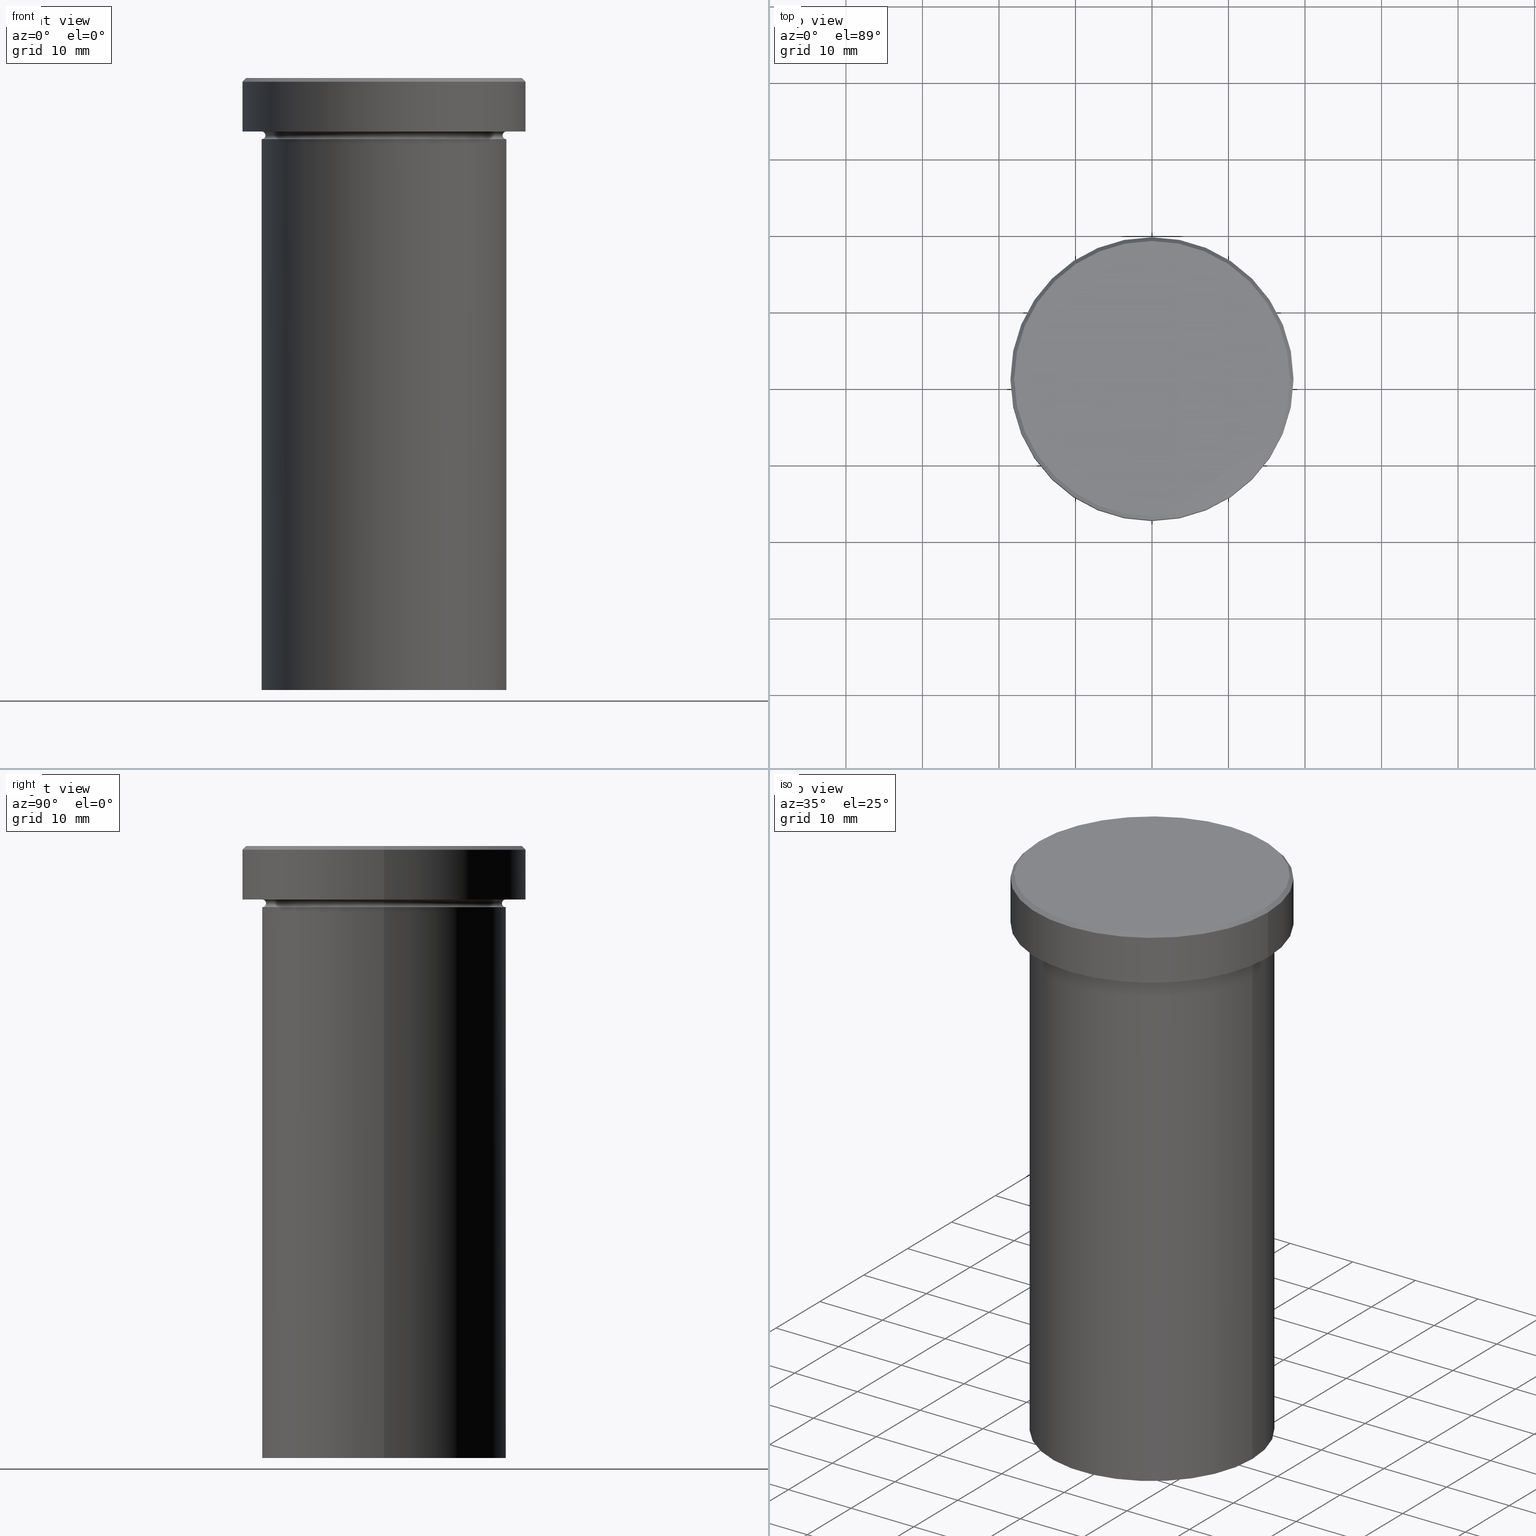
[diagram: canonical four-view strip — front | top / right | iso, engineering-drawing reading convention]
A machine part, canonical four-view strip (front | top / right | iso — engineering-drawing reading convention). The complete STEP part file that produces these views, byte-faithful:
ISO-10303-21;
HEADER;
FILE_DESCRIPTION (( 'STEP AP203' ),
    '1' );
FILE_NAME ('068a.STEP',
    '2024-01-02T18:52:44',
    ( '' ),
    ( '' ),
    'SwSTEP 2.0',
    'SolidWorks 2019',
    '' );
FILE_SCHEMA (( 'CONFIG_CONTROL_DESIGN' ));
ENDSEC;

DATA;
#1 = CARTESIAN_POINT ( 'NONE',  ( 18.50000000000000000, 0.000000000000000000, -6.999999999999998224 ) ) ;
#2 = EDGE_CURVE ( 'NONE', #43, #400, #278, .T. ) ;
#3 = CC_DESIGN_APPROVAL ( #367, ( #87 ) ) ;
#4 = DIRECTION ( 'NONE',  ( 1.000000000000000000, 0.000000000000000000, 0.000000000000000000 ) ) ;
#5 = CALENDAR_DATE ( 2024, 2, 1 ) ;
#6 = DIRECTION ( 'NONE',  ( 0.000000000000000000, -1.000000000000000000, 0.000000000000000000 ) ) ;
#7 = CC_DESIGN_PERSON_AND_ORGANIZATION_ASSIGNMENT ( #389, #355, ( #258 ) ) ;
#8 = CARTESIAN_POINT ( 'NONE',  ( 0.000000000000000000, 0.000000000000000000, -7.500000000000000000 ) ) ;
#9 = CONICAL_SURFACE ( 'NONE', #170, 17.99999999999998934, 0.7853981633974380649 ) ;
#10 = CARTESIAN_POINT ( 'NONE',  ( -16.00000000000000000, 1.959434878635765131E-15, -7.500000000000000000 ) ) ;
#11 = DIRECTION ( 'NONE',  ( -1.000000000000000000, 0.000000000000000000, -0.000000000000000000 ) ) ;
#12 = CC_DESIGN_PERSON_AND_ORGANIZATION_ASSIGNMENT ( #378, #344, ( #82 ) ) ;
#13 = DIRECTION ( 'NONE',  ( -1.000000000000000000, -1.224646799147349509E-16, 0.000000000000000000 ) ) ;
#14 = CIRCLE ( 'NONE', #279, 18.50000000000000000 ) ;
#15 = ORIENTED_EDGE ( 'NONE', *, *, #50, .F. ) ;
#16 = ORIENTED_EDGE ( 'NONE', *, *, #288, .T. ) ;
#17 = ORIENTED_EDGE ( 'NONE', *, *, #282, .F. ) ;
#18 =( NAMED_UNIT ( * ) PLANE_ANGLE_UNIT ( ) SI_UNIT ( $, .RADIAN. ) );
#19 =( GEOMETRIC_REPRESENTATION_CONTEXT ( 3 ) GLOBAL_UNCERTAINTY_ASSIGNED_CONTEXT ( ( #184 ) ) GLOBAL_UNIT_ASSIGNED_CONTEXT ( ( #337, #18, #319 ) ) REPRESENTATION_CONTEXT ( 'NONE', 'WORKASPACE' ) );
#20 = ORIENTED_EDGE ( 'NONE', *, *, #386, .F. ) ;
#21 = ORIENTED_EDGE ( 'NONE', *, *, #116, .T. ) ;
#22 = DIRECTION ( 'NONE',  ( 1.000000000000000000, 0.000000000000000000, 0.000000000000000000 ) ) ;
#23 = EDGE_CURVE ( 'NONE', #306, #373, #118, .T. ) ;
#24 = DIRECTION ( 'NONE',  ( -0.000000000000000000, -0.000000000000000000, 1.000000000000000000 ) ) ;
#25 = AXIS2_PLACEMENT_3D ( 'NONE', #96, #232, #62 ) ;
#26 = CALENDAR_DATE ( 2024, 2, 1 ) ;
#27 = APPROVAL_DATE_TIME ( #33, #295 ) ;
#28 = ADVANCED_FACE ( 'NONE', ( #78 ), #405, .T. ) ;
#29 = CYLINDRICAL_SURFACE ( 'NONE', #234, 18.50000000000000000 ) ;
#30 = APPROVAL_DATE_TIME ( #322, #143 ) ;
#31 = CARTESIAN_POINT ( 'NONE',  ( 0.000000000000000000, 0.000000000000000000, 0.000000000000000000 ) ) ;
#32 = APPROVAL_PERSON_ORGANIZATION ( #92, #367, #35 ) ;
#33 = DATE_AND_TIME ( #5, #74 ) ;
#34 = DIRECTION ( 'NONE',  ( 0.000000000000000000, 0.000000000000000000, -1.000000000000000000 ) ) ;
#35 = APPROVAL_ROLE ( '' ) ;
#36 = DIRECTION ( 'NONE',  ( -1.000000000000000000, 0.000000000000000000, 0.000000000000000000 ) ) ;
#37 = EDGE_CURVE ( 'NONE', #379, #302, #185, .T. ) ;
#38 = DIRECTION ( 'NONE',  ( -0.000000000000000000, -0.000000000000000000, 1.000000000000000000 ) ) ;
#39 = AXIS2_PLACEMENT_3D ( 'NONE', #229, #231, #358 ) ;
#40 = EDGE_LOOP ( 'NONE', ( #174, #214, #112, #134 ) ) ;
#41 = CARTESIAN_POINT ( 'NONE',  ( 0.000000000000000000, 18.50000000000000000, -6.999999999999999112 ) ) ;
#42 = ADVANCED_FACE ( 'NONE', ( #342 ), #246, .T. ) ;
#43 = VERTEX_POINT ( 'NONE', #149 ) ;
#44 = DIRECTION ( 'NONE',  ( -0.000000000000000000, -0.000000000000000000, 1.000000000000000000 ) ) ;
#45 = AXIS2_PLACEMENT_3D ( 'NONE', #151, #286, #253 ) ;
#46 = LINE ( 'NONE', #77, #128 ) ;
#47 = CIRCLE ( 'NONE', #39, 17.99999999999998934 ) ;
#48 = ORIENTED_EDGE ( 'NONE', *, *, #168, .F. ) ;
#49 = ORIENTED_EDGE ( 'NONE', *, *, #122, .F. ) ;
#50 = EDGE_CURVE ( 'NONE', #302, #307, #375, .T. ) ;
#51 = DIRECTION ( 'NONE',  ( -0.000000000000000000, -0.000000000000000000, 1.000000000000000000 ) ) ;
#52 = EDGE_LOOP ( 'NONE', ( #343, #106 ) ) ;
#53 = ORIENTED_EDGE ( 'NONE', *, *, #338, .F. ) ;
#54 = APPROVAL_PERSON_ORGANIZATION ( #65, #295, #320 ) ;
#55 = FACE_OUTER_BOUND ( 'NONE', #124, .T. ) ;
#56 = DIRECTION ( 'NONE',  ( -0.000000000000000000, -0.000000000000000000, 1.000000000000000000 ) ) ;
#57 = EDGE_CURVE ( 'NONE', #373, #306, #103, .T. ) ;
#58 = APPLICATION_PROTOCOL_DEFINITION ( 'international standard', 'config_control_design', 1994, #208 ) ;
#59 = DIRECTION ( 'NONE',  ( -0.000000000000000000, -0.000000000000000000, 1.000000000000000000 ) ) ;
#60 = AXIS2_PLACEMENT_3D ( 'NONE', #71, #132, #227 ) ;
#61 = CC_DESIGN_PERSON_AND_ORGANIZATION_ASSIGNMENT ( #352, #226, ( #362 ) ) ;
#62 = DIRECTION ( 'NONE',  ( 1.000000000000000000, 0.000000000000000000, 0.000000000000000000 ) ) ;
#63 = CALENDAR_DATE ( 2024, 2, 1 ) ;
#64 = CARTESIAN_POINT ( 'NONE',  ( -17.99999999999998934, 0.000000000000000000, 0.000000000000000000 ) ) ;
#65 = PERSON_AND_ORGANIZATION ( #290, #223 ) ;
#66 = DIRECTION ( 'NONE',  ( -0.000000000000000000, -0.000000000000000000, 1.000000000000000000 ) ) ;
#67 = AXIS2_PLACEMENT_3D ( 'NONE', #276, #215, #220 ) ;
#68 = COORDINATED_UNIVERSAL_TIME_OFFSET ( 1, 0, .AHEAD. ) ;
#69 = DIRECTION ( 'NONE',  ( 1.000000000000000000, 0.000000000000000000, 0.000000000000000000 ) ) ;
#70 = ADVANCED_FACE ( 'NONE', ( #153 ), #297, .F. ) ;
#71 = CARTESIAN_POINT ( 'NONE',  ( 0.000000000000000000, 0.000000000000000000, -7.500000000000000000 ) ) ;
#72 = FACE_BOUND ( 'NONE', #395, .T. ) ;
#73 = ADVANCED_FACE ( 'NONE', ( #255 ), #157, .F. ) ;
#74 = LOCAL_TIME ( 19, 52, 44.00000000000000000, #152 ) ;
#75 = PLANE ( 'NONE',  #298 ) ;
#76 = ORIENTED_EDGE ( 'NONE', *, *, #327, .T. ) ;
#77 = CARTESIAN_POINT ( 'NONE',  ( 17.99999999999998934, 2.204364238465234244E-15, 0.000000000000000000 ) ) ;
#78 = FACE_OUTER_BOUND ( 'NONE', #140, .T. ) ;
#79 = VERTEX_POINT ( 'NONE', #1 ) ;
#80 = ORIENTED_EDGE ( 'NONE', *, *, #316, .F. ) ;
#81 = ORIENTED_EDGE ( 'NONE', *, *, #97, .T. ) ;
#82 = PRODUCT ( '068a', '068a', '', ( #315 ) ) ;
#83 = CARTESIAN_POINT ( 'NONE',  ( 0.000000000000000000, 0.000000000000000000, 0.000000000000000000 ) ) ;
#84 = DIRECTION ( 'NONE',  ( 1.000000000000000000, 0.000000000000000000, 0.000000000000000000 ) ) ;
#85 = CARTESIAN_POINT ( 'NONE',  ( 0.000000000000000000, 0.000000000000000000, 0.000000000000000000 ) ) ;
#86 = ORIENTED_EDGE ( 'NONE', *, *, #407, .T. ) ;
#87 = PRODUCT_DEFINITION ( 'NEZN�M�', '', #258, #117 ) ;
#88 = DIRECTION ( 'NONE',  ( 1.000000000000000000, 0.000000000000000000, 0.000000000000000000 ) ) ;
#89 = VECTOR ( 'NONE', #393, 1000.000000000000000 ) ;
#90 = CARTESIAN_POINT ( 'NONE',  ( -15.50000000000000000, 1.928818708657081344E-15, -7.500000000000000000 ) ) ;
#91 = APPLICATION_CONTEXT ( 'configuration controlled 3d designs of mechanical parts and assemblies' ) ;
#92 = PERSON_AND_ORGANIZATION ( #290, #223 ) ;
#93 = FACE_OUTER_BOUND ( 'NONE', #145, .T. ) ;
#94 = AXIS2_PLACEMENT_3D ( 'NONE', #180, #318, #88 ) ;
#95 = CIRCLE ( 'NONE', #186, 16.00000000000000000 ) ;
#96 = CARTESIAN_POINT ( 'NONE',  ( 0.000000000000000000, 0.000000000000000000, -7.500000000000000000 ) ) ;
#97 = EDGE_CURVE ( 'NONE', #409, #79, #397, .T. ) ;
#98 = CARTESIAN_POINT ( 'NONE',  ( 16.00000000000000000, 0.000000000000000000, -7.500000000000000000 ) ) ;
#99 = AXIS2_PLACEMENT_3D ( 'NONE', #107, #303, #13 ) ;
#100 = TOROIDAL_SURFACE ( 'NONE', #60, 16.00000000000000000, 0.5000000000000000000 ) ;
#101 = DIRECTION ( 'NONE',  ( -0.000000000000000000, -1.000000000000000000, -0.000000000000000000 ) ) ;
#102 = DIRECTION ( 'NONE',  ( 0.000000000000000000, 0.000000000000000000, -1.000000000000000000 ) ) ;
#103 = CIRCLE ( 'NONE', #45, 15.50000000000000000 ) ;
#104 = APPROVAL_PERSON_ORGANIZATION ( #230, #143, #359 ) ;
#105 = ORIENTED_EDGE ( 'NONE', *, *, #130, .F. ) ;
#106 = ORIENTED_EDGE ( 'NONE', *, *, #212, .T. ) ;
#107 = CARTESIAN_POINT ( 'NONE',  ( 16.00000000000000000, 1.959434878635765131E-15, -7.500000000000000000 ) ) ;
#108 = ORIENTED_EDGE ( 'NONE', *, *, #212, .F. ) ;
#109 = DIRECTION ( 'NONE',  ( 0.7071067811865402453, 8.659560562354844111E-17, -0.7071067811865549002 ) ) ;
#110 = EDGE_CURVE ( 'NONE', #221, #372, #382, .T. ) ;
#111 = DIRECTION ( 'NONE',  ( -0.000000000000000000, -0.000000000000000000, 1.000000000000000000 ) ) ;
#112 = ORIENTED_EDGE ( 'NONE', *, *, #168, .T. ) ;
#113 = ORIENTED_EDGE ( 'NONE', *, *, #37, .T. ) ;
#114 = DIRECTION ( 'NONE',  ( 0.000000000000000000, 0.000000000000000000, 1.000000000000000000 ) ) ;
#115 = DIRECTION ( 'NONE',  ( 1.000000000000000000, 0.000000000000000000, 0.000000000000000000 ) ) ;
#116 = EDGE_CURVE ( 'NONE', #306, #399, #209, .T. ) ;
#117 = DESIGN_CONTEXT ( 'detailed design', #208, 'design' ) ;
#118 = CIRCLE ( 'NONE', #233, 15.50000000000000000 ) ;
#119 = AXIS2_PLACEMENT_3D ( 'NONE', #177, #59, #245 ) ;
#120 = ORIENTED_EDGE ( 'NONE', *, *, #158, .T. ) ;
#121 = CYLINDRICAL_SURFACE ( 'NONE', #67, 18.50000000000000000 ) ;
#122 = EDGE_CURVE ( 'NONE', #373, #307, #390, .T. ) ;
#123 = DIRECTION ( 'NONE',  ( -0.000000000000000000, -0.000000000000000000, 1.000000000000000000 ) ) ;
#124 = EDGE_LOOP ( 'NONE', ( #148, #81, #349, #205 ) ) ;
#125 = APPROVAL_STATUS ( 'not_yet_approved' ) ;
#126 = ORIENTED_EDGE ( 'NONE', *, *, #407, .F. ) ;
#127 = DIRECTION ( 'NONE',  ( -0.7071067811865402453, 0.000000000000000000, -0.7071067811865549002 ) ) ;
#128 = VECTOR ( 'NONE', #109, 1000.000000000000114 ) ;
#129 = DIRECTION ( 'NONE',  ( 0.000000000000000000, 0.000000000000000000, -1.000000000000000000 ) ) ;
#130 = EDGE_CURVE ( 'NONE', #311, #372, #351, .T. ) ;
#131 = DATE_AND_TIME ( #194, #292 ) ;
#132 = DIRECTION ( 'NONE',  ( 0.000000000000000000, 0.000000000000000000, -1.000000000000000000 ) ) ;
#133 = CARTESIAN_POINT ( 'NONE',  ( -16.00000000000000000, 0.000000000000000000, -7.500000000000000000 ) ) ;
#134 = ORIENTED_EDGE ( 'NONE', *, *, #2, .F. ) ;
#135 = CONICAL_SURFACE ( 'NONE', #357, 17.99999999999998934, 0.7853981633974380649 ) ;
#136 = CARTESIAN_POINT ( 'NONE',  ( 0.000000000000000000, 0.000000000000000000, -6.999999999999998224 ) ) ;
#137 = CC_DESIGN_PERSON_AND_ORGANIZATION_ASSIGNMENT ( #260, #160, ( #258 ) ) ;
#138 = ORIENTED_EDGE ( 'NONE', *, *, #2, .T. ) ;
#139 = FACE_OUTER_BOUND ( 'NONE', #52, .T. ) ;
#140 = EDGE_LOOP ( 'NONE', ( #15, #202, #301, #20 ) ) ;
#141 = CIRCLE ( 'NONE', #325, 17.99999999999998934 ) ;
#142 = CARTESIAN_POINT ( 'NONE',  ( -16.00000000000000000, 1.959434878635765131E-15, -80.00000000000000000 ) ) ;
#143 = APPROVAL ( #125, 'NEUR�EN�' ) ;
#144 = DIRECTION ( 'NONE',  ( 1.000000000000000000, 0.000000000000000000, 0.000000000000000000 ) ) ;
#145 = EDGE_LOOP ( 'NONE', ( #108, #266, #80, #105 ) ) ;
#146 = AXIS2_PLACEMENT_3D ( 'NONE', #163, #66, #387 ) ;
#147 = CARTESIAN_POINT ( 'NONE',  ( 0.000000000000000000, 0.000000000000000000, -8.000000000000000000 ) ) ;
#148 = ORIENTED_EDGE ( 'NONE', *, *, #327, .F. ) ;
#149 = CARTESIAN_POINT ( 'NONE',  ( 16.00000000000000000, 1.959434878635765131E-15, -6.999999999999999112 ) ) ;
#150 = AXIS2_PLACEMENT_3D ( 'NONE', #207, #332, #240 ) ;
#151 = CARTESIAN_POINT ( 'NONE',  ( 0.000000000000000000, 0.000000000000000000, -7.500000000000000000 ) ) ;
#152 = COORDINATED_UNIVERSAL_TIME_OFFSET ( 1, 0, .AHEAD. ) ;
#153 = FACE_OUTER_BOUND ( 'NONE', #217, .T. ) ;
#154 = SECURITY_CLASSIFICATION_LEVEL ( 'unclassified' ) ;
#155 = DIRECTION ( 'NONE',  ( -0.000000000000000000, -0.000000000000000000, 1.000000000000000000 ) ) ;
#156 = CARTESIAN_POINT ( 'NONE',  ( 0.000000000000000000, 0.000000000000000000, 0.000000000000000000 ) ) ;
#157 = TOROIDAL_SURFACE ( 'NONE', #356, 16.00000000000000000, 0.5000000000000000000 ) ;
#158 = EDGE_CURVE ( 'NONE', #79, #409, #14, .T. ) ;
#159 = AXIS2_PLACEMENT_3D ( 'NONE', #10, #293, #195 ) ;
#160 = PERSON_AND_ORGANIZATION_ROLE ( 'design_supplier' ) ;
#161 = ADVANCED_BREP_SHAPE_REPRESENTATION ( '068a', ( #190, #244 ), #19 ) ;
#162 = APPROVAL_DATE_TIME ( #197, #367 ) ;
#163 = CARTESIAN_POINT ( 'NONE',  ( 0.000000000000000000, 0.000000000000000000, -6.999999999999998224 ) ) ;
#164 = VECTOR ( 'NONE', #51, 1000.000000000000000 ) ;
#165 = ORIENTED_EDGE ( 'NONE', *, *, #37, .F. ) ;
#166 = DIRECTION ( 'NONE',  ( -0.000000000000000000, -0.000000000000000000, 1.000000000000000000 ) ) ;
#167 = EDGE_LOOP ( 'NONE', ( #113, #363, #271, #53 ) ) ;
#168 = EDGE_CURVE ( 'NONE', #373, #400, #265, .T. ) ;
#169 = AXIS2_PLACEMENT_3D ( 'NONE', #199, #237, #365 ) ;
#170 = AXIS2_PLACEMENT_3D ( 'NONE', #31, #198, #381 ) ;
#171 = CARTESIAN_POINT ( 'NONE',  ( -17.99999999999998934, 0.000000000000000000, 0.000000000000000000 ) ) ;
#172 = EDGE_LOOP ( 'NONE', ( #165, #273 ) ) ;
#173 = DIRECTION ( 'NONE',  ( -1.000000000000000000, 0.000000000000000000, -0.000000000000000000 ) ) ;
#174 = ORIENTED_EDGE ( 'NONE', *, *, #288, .F. ) ;
#175 = ADVANCED_FACE ( 'NONE', ( #385 ), #100, .F. ) ;
#176 = LINE ( 'NONE', #249, #178 ) ;
#177 = CARTESIAN_POINT ( 'NONE',  ( 0.000000000000000000, 0.000000000000000000, -6.999999999999999112 ) ) ;
#178 = VECTOR ( 'NONE', #374, 1000.000000000000000 ) ;
#179 = DIRECTION ( 'NONE',  ( 1.000000000000000000, 0.000000000000000000, 0.000000000000000000 ) ) ;
#180 = CARTESIAN_POINT ( 'NONE',  ( 0.000000000000000000, 0.000000000000000000, -80.00000000000000000 ) ) ;
#181 = DIRECTION ( 'NONE',  ( -0.000000000000000000, -0.000000000000000000, 1.000000000000000000 ) ) ;
#182 = CARTESIAN_POINT ( 'NONE',  ( 0.000000000000000000, 0.000000000000000000, 0.000000000000000000 ) ) ;
#183 = ORIENTED_EDGE ( 'NONE', *, *, #386, .T. ) ;
#184 = UNCERTAINTY_MEASURE_WITH_UNIT (LENGTH_MEASURE( 1.000000000000000082E-05 ), #337, 'distance_accuracy_value', 'NONE');
#185 = CIRCLE ( 'NONE', #94, 16.00000000000000000 ) ;
#186 = AXIS2_PLACEMENT_3D ( 'NONE', #147, #312, #339 ) ;
#187 = PERSON_AND_ORGANIZATION_ROLE ( 'creator' ) ;
#188 = DIRECTION ( 'NONE',  ( -1.000000000000000000, 0.000000000000000000, 0.000000000000000000 ) ) ;
#189 = APPROVAL_STATUS ( 'not_yet_approved' ) ;
#190 = MANIFOLD_SOLID_BREP ( 'Zkosen�1', #243 ) ;
#191 = ADVANCED_FACE ( 'NONE', ( #192 ), #193, .F. ) ;
#192 = FACE_OUTER_BOUND ( 'NONE', #310, .T. ) ;
#193 = TOROIDAL_SURFACE ( 'NONE', #25, 16.00000000000000000, 0.5000000000000000000 ) ;
#194 = CALENDAR_DATE ( 2024, 2, 1 ) ;
#195 = DIRECTION ( 'NONE',  ( -1.000000000000000000, 1.224646799147349509E-16, 0.000000000000000000 ) ) ;
#196 = ADVANCED_FACE ( 'NONE', ( #93 ), #9, .T. ) ;
#197 = DATE_AND_TIME ( #222, #328 ) ;
#198 = DIRECTION ( 'NONE',  ( 0.000000000000000000, 0.000000000000000000, -1.000000000000000000 ) ) ;
#199 = CARTESIAN_POINT ( 'NONE',  ( 0.000000000000000000, 0.000000000000000000, -6.999999999999999112 ) ) ;
#200 = LOCAL_TIME ( 19, 52, 44.00000000000000000, #408 ) ;
#201 = DIRECTION ( 'NONE',  ( 0.000000000000000000, 0.000000000000000000, -1.000000000000000000 ) ) ;
#202 = ORIENTED_EDGE ( 'NONE', *, *, #401, .T. ) ;
#203 = CARTESIAN_POINT ( 'NONE',  ( 0.000000000000000000, 0.000000000000000000, 0.000000000000000000 ) ) ;
#204 = ADVANCED_FACE ( 'NONE', ( #259 ), #135, .T. ) ;
#205 = ORIENTED_EDGE ( 'NONE', *, *, #110, .T. ) ;
#206 = ORIENTED_EDGE ( 'NONE', *, *, #391, .T. ) ;
#207 = CARTESIAN_POINT ( 'NONE',  ( 0.000000000000000000, 0.000000000000000000, -0.5000000000000213163 ) ) ;
#208 = APPLICATION_CONTEXT ( 'configuration controlled 3d designs of mechanical parts and assemblies' ) ;
#209 = CIRCLE ( 'NONE', #264, 0.5000000000000004441 ) ;
#210 = VECTOR ( 'NONE', #127, 1000.000000000000114 ) ;
#211 = CARTESIAN_POINT ( 'NONE',  ( -18.50000000000000000, 2.265596578422603396E-15, 0.000000000000000000 ) ) ;
#212 = EDGE_CURVE ( 'NONE', #370, #311, #47, .T. ) ;
#213 = CARTESIAN_POINT ( 'NONE',  ( 0.000000000000000000, 0.000000000000000000, -8.000000000000000000 ) ) ;
#214 = ORIENTED_EDGE ( 'NONE', *, *, #23, .T. ) ;
#215 = DIRECTION ( 'NONE',  ( -0.000000000000000000, -0.000000000000000000, 1.000000000000000000 ) ) ;
#216 = CIRCLE ( 'NONE', #403, 16.00000000000000000 ) ;
#217 = EDGE_LOOP ( 'NONE', ( #49, #274, #21, #206 ) ) ;
#218 = CC_DESIGN_DATE_AND_TIME_ASSIGNMENT ( #131, #228, ( #362 ) ) ;
#219 = ORIENTED_EDGE ( 'NONE', *, *, #158, .F. ) ;
#220 = DIRECTION ( 'NONE',  ( 1.000000000000000000, 0.000000000000000000, 0.000000000000000000 ) ) ;
#221 = VERTEX_POINT ( 'NONE', #321 ) ;
#222 = CALENDAR_DATE ( 2024, 2, 1 ) ;
#223 = ORGANIZATION ( 'NEUR�EN�', 'NEUR�EN�', '' ) ;
#224 = CARTESIAN_POINT ( 'NONE',  ( 0.000000000000000000, 0.000000000000000000, 0.000000000000000000 ) ) ;
#225 = ORIENTED_EDGE ( 'NONE', *, *, #116, .F. ) ;
#226 = PERSON_AND_ORGANIZATION_ROLE ( 'classification_officer' ) ;
#227 = DIRECTION ( 'NONE',  ( -1.000000000000000000, 0.000000000000000000, 0.000000000000000000 ) ) ;
#228 = DATE_TIME_ROLE ( 'classification_date' ) ;
#229 = CARTESIAN_POINT ( 'NONE',  ( 0.000000000000000000, 0.000000000000000000, 0.000000000000000000 ) ) ;
#230 = PERSON_AND_ORGANIZATION ( #290, #223 ) ;
#231 = DIRECTION ( 'NONE',  ( -0.000000000000000000, -0.000000000000000000, 1.000000000000000000 ) ) ;
#232 = DIRECTION ( 'NONE',  ( -0.000000000000000000, -0.000000000000000000, 1.000000000000000000 ) ) ;
#233 = AXIS2_PLACEMENT_3D ( 'NONE', #331, #44, #368 ) ;
#234 = AXIS2_PLACEMENT_3D ( 'NONE', #156, #155, #4 ) ;
#235 = ADVANCED_FACE ( 'NONE', ( #323 ), #29, .T. ) ;
#236 = CARTESIAN_POINT ( 'NONE',  ( 18.50000000000000000, 0.000000000000000000, 0.000000000000000000 ) ) ;
#237 = DIRECTION ( 'NONE',  ( -0.000000000000000000, -0.000000000000000000, 1.000000000000000000 ) ) ;
#238 = ORIENTED_EDGE ( 'NONE', *, *, #110, .F. ) ;
#239 = CARTESIAN_POINT ( 'NONE',  ( 15.50000000000000000, 0.000000000000000000, -7.500000000000000000 ) ) ;
#240 = DIRECTION ( 'NONE',  ( 1.000000000000000000, 0.000000000000000000, 0.000000000000000000 ) ) ;
#241 = PRODUCT_RELATED_PRODUCT_CATEGORY ( 'detail', '', ( #82 ) ) ;
#242 = ORIENTED_EDGE ( 'NONE', *, *, #316, .T. ) ;
#243 = CLOSED_SHELL ( 'NONE', ( #196, #73, #191, #42, #235, #268, #248, #361, #275, #28, #70, #175, #204 ) ) ;
#244 = AXIS2_PLACEMENT_3D ( 'NONE', #83, #114, #84 ) ;
#245 = DIRECTION ( 'NONE',  ( -1.000000000000000000, 0.000000000000000000, 0.000000000000000000 ) ) ;
#246 = CYLINDRICAL_SURFACE ( 'NONE', #324, 16.00000000000000000 ) ;
#247 = CARTESIAN_POINT ( 'NONE',  ( -18.50000000000000000, 2.265596578422603396E-15, -0.5000000000000213163 ) ) ;
#248 = ADVANCED_FACE ( 'NONE', ( #139 ), #75, .T. ) ;
#249 = CARTESIAN_POINT ( 'NONE',  ( 16.00000000000000000, 0.000000000000000000, 0.000000000000000000 ) ) ;
#250 = AXIS2_PLACEMENT_3D ( 'NONE', #41, #102, #11 ) ;
#251 = ORIENTED_EDGE ( 'NONE', *, *, #308, .F. ) ;
#252 = CARTESIAN_POINT ( 'NONE',  ( 16.00000000000000000, 0.000000000000000000, -80.00000000000000000 ) ) ;
#253 = DIRECTION ( 'NONE',  ( 1.000000000000000000, 0.000000000000000000, 0.000000000000000000 ) ) ;
#254 = DATE_AND_TIME ( #26, #200 ) ;
#255 = FACE_OUTER_BOUND ( 'NONE', #371, .T. ) ;
#256 = EDGE_LOOP ( 'NONE', ( #219, #313 ) ) ;
#257 = COORDINATED_UNIVERSAL_TIME_OFFSET ( 1, 0, .AHEAD. ) ;
#258 = PRODUCT_DEFINITION_FORMATION_WITH_SPECIFIED_SOURCE ( 'LIBOVOLN�', '', #82, .NOT_KNOWN. ) ;
#259 = FACE_OUTER_BOUND ( 'NONE', #392, .T. ) ;
#260 = PERSON_AND_ORGANIZATION ( #290, #223 ) ;
#261 = DIRECTION ( 'NONE',  ( 1.000000000000000000, 0.000000000000000000, 0.000000000000000000 ) ) ;
#262 = SHAPE_DEFINITION_REPRESENTATION ( #404, #161 ) ;
#263 = EDGE_CURVE ( 'NONE', #79, #221, #267, .T. ) ;
#264 = AXIS2_PLACEMENT_3D ( 'NONE', #98, #6, #294 ) ;
#265 = CIRCLE ( 'NONE', #334, 0.5000000000000004441 ) ;
#266 = ORIENTED_EDGE ( 'NONE', *, *, #308, .T. ) ;
#267 = LINE ( 'NONE', #236, #89 ) ;
#268 = ADVANCED_FACE ( 'NONE', ( #364 ), #299, .T. ) ;
#269 = ORIENTED_EDGE ( 'NONE', *, *, #122, .T. ) ;
#270 = CARTESIAN_POINT ( 'NONE',  ( 0.000000000000000000, 0.000000000000000000, 0.000000000000000000 ) ) ;
#271 = ORIENTED_EDGE ( 'NONE', *, *, #391, .F. ) ;
#272 = CC_DESIGN_APPROVAL ( #143, ( #362 ) ) ;
#273 = ORIENTED_EDGE ( 'NONE', *, *, #401, .F. ) ;
#274 = ORIENTED_EDGE ( 'NONE', *, *, #23, .F. ) ;
#275 = ADVANCED_FACE ( 'NONE', ( #72, #330 ), #394, .T. ) ;
#276 = CARTESIAN_POINT ( 'NONE',  ( 0.000000000000000000, 0.000000000000000000, 0.000000000000000000 ) ) ;
#277 = ORIENTED_EDGE ( 'NONE', *, *, #57, .T. ) ;
#278 = CIRCLE ( 'NONE', #169, 16.00000000000000000 ) ;
#279 = AXIS2_PLACEMENT_3D ( 'NONE', #136, #38, #289 ) ;
#280 = APPLICATION_PROTOCOL_DEFINITION ( 'international standard', 'config_control_design', 1994, #91 ) ;
#281 = CARTESIAN_POINT ( 'NONE',  ( -16.00000000000000000, 0.000000000000000000, -6.999999999999999112 ) ) ;
#282 = EDGE_CURVE ( 'NONE', #311, #370, #141, .T. ) ;
#283 = DIRECTION ( 'NONE',  ( 1.000000000000000000, 0.000000000000000000, 0.000000000000000000 ) ) ;
#284 = CARTESIAN_POINT ( 'NONE',  ( -16.00000000000000000, 1.959434878635765131E-15, 0.000000000000000000 ) ) ;
#285 = ORIENTED_EDGE ( 'NONE', *, *, #130, .T. ) ;
#286 = DIRECTION ( 'NONE',  ( -0.000000000000000000, -0.000000000000000000, 1.000000000000000000 ) ) ;
#287 = APPROVAL_STATUS ( 'not_yet_approved' ) ;
#288 = EDGE_CURVE ( 'NONE', #306, #43, #346, .T. ) ;
#289 = DIRECTION ( 'NONE',  ( 1.000000000000000000, 0.000000000000000000, 0.000000000000000000 ) ) ;
#290 = PERSON ( 'NEUR�EN�', 'NEUR�EN�', 'NEUR�EN�', ('NEUR�EN�'), ('NEUR�EN�'), ('NEUR�EN�') ) ;
#291 = VECTOR ( 'NONE', #24, 1000.000000000000000 ) ;
#292 = LOCAL_TIME ( 19, 52, 44.00000000000000000, #257 ) ;
#293 = DIRECTION ( 'NONE',  ( 1.224646799147353207E-16, 1.000000000000000000, 0.000000000000000000 ) ) ;
#294 = DIRECTION ( 'NONE',  ( 0.000000000000000000, 0.000000000000000000, -1.000000000000000000 ) ) ;
#295 = APPROVAL ( #189, 'NEUR�EN�' ) ;
#296 = DIRECTION ( 'NONE',  ( -0.000000000000000000, -0.000000000000000000, 1.000000000000000000 ) ) ;
#297 = TOROIDAL_SURFACE ( 'NONE', #333, 16.00000000000000000, 0.5000000000000000000 ) ;
#298 = AXIS2_PLACEMENT_3D ( 'NONE', #270, #396, #144 ) ;
#299 = PLANE ( 'NONE',  #398 ) ;
#300 = CC_DESIGN_DATE_AND_TIME_ASSIGNMENT ( #254, #384, ( #87 ) ) ;
#301 = ORIENTED_EDGE ( 'NONE', *, *, #338, .T. ) ;
#302 = VERTEX_POINT ( 'NONE', #142 ) ;
#303 = DIRECTION ( 'NONE',  ( -1.224646799147353207E-16, 1.000000000000000000, 0.000000000000000000 ) ) ;
#304 = CIRCLE ( 'NONE', #383, 16.00000000000000000 ) ;
#305 = CARTESIAN_POINT ( 'NONE',  ( 0.000000000000000000, 16.00000000000000000, -80.00000000000000000 ) ) ;
#306 = VERTEX_POINT ( 'NONE', #239 ) ;
#307 = VERTEX_POINT ( 'NONE', #366 ) ;
#308 = EDGE_CURVE ( 'NONE', #370, #221, #46, .T. ) ;
#309 = DIRECTION ( 'NONE',  ( 1.000000000000000000, 0.000000000000000000, 0.000000000000000000 ) ) ;
#310 = EDGE_LOOP ( 'NONE', ( #336, #269, #183, #225 ) ) ;
#311 = VERTEX_POINT ( 'NONE', #171 ) ;
#312 = DIRECTION ( 'NONE',  ( -0.000000000000000000, -0.000000000000000000, 1.000000000000000000 ) ) ;
#313 = ORIENTED_EDGE ( 'NONE', *, *, #97, .F. ) ;
#314 = CC_DESIGN_APPROVAL ( #295, ( #258 ) ) ;
#315 = MECHANICAL_CONTEXT ( 'NONE', #91, 'mechanical' ) ;
#316 = EDGE_CURVE ( 'NONE', #372, #221, #377, .T. ) ;
#317 = CARTESIAN_POINT ( 'NONE',  ( 16.00000000000000000, 0.000000000000000000, -8.000000000000000000 ) ) ;
#318 = DIRECTION ( 'NONE',  ( -0.000000000000000000, -0.000000000000000000, 1.000000000000000000 ) ) ;
#319 =( NAMED_UNIT ( * ) SI_UNIT ( $, .STERADIAN. ) SOLID_ANGLE_UNIT ( ) );
#320 = APPROVAL_ROLE ( '' ) ;
#321 = CARTESIAN_POINT ( 'NONE',  ( 18.50000000000000000, 0.000000000000000000, -0.5000000000000213163 ) ) ;
#322 = DATE_AND_TIME ( #63, #340 ) ;
#323 = FACE_OUTER_BOUND ( 'NONE', #376, .T. ) ;
#324 = AXIS2_PLACEMENT_3D ( 'NONE', #182, #56, #22 ) ;
#325 = AXIS2_PLACEMENT_3D ( 'NONE', #203, #166, #309 ) ;
#326 = CARTESIAN_POINT ( 'NONE',  ( 0.000000000000000000, 0.000000000000000000, -0.5000000000000213163 ) ) ;
#327 = EDGE_CURVE ( 'NONE', #409, #372, #369, .T. ) ;
#328 = LOCAL_TIME ( 19, 52, 44.00000000000000000, #68 ) ;
#329 = ORIENTED_EDGE ( 'NONE', *, *, #263, .F. ) ;
#330 = FACE_OUTER_BOUND ( 'NONE', #256, .T. ) ;
#331 = CARTESIAN_POINT ( 'NONE',  ( 0.000000000000000000, 0.000000000000000000, -7.500000000000000000 ) ) ;
#332 = DIRECTION ( 'NONE',  ( 0.000000000000000000, 0.000000000000000000, -1.000000000000000000 ) ) ;
#333 = AXIS2_PLACEMENT_3D ( 'NONE', #8, #296, #69 ) ;
#334 = AXIS2_PLACEMENT_3D ( 'NONE', #133, #101, #360 ) ;
#335 = CC_DESIGN_SECURITY_CLASSIFICATION ( #362, ( #258 ) ) ;
#336 = ORIENTED_EDGE ( 'NONE', *, *, #57, .F. ) ;
#337 =( LENGTH_UNIT ( ) NAMED_UNIT ( * ) SI_UNIT ( .MILLI., .METRE. ) );
#338 = EDGE_CURVE ( 'NONE', #379, #399, #176, .T. ) ;
#339 = DIRECTION ( 'NONE',  ( 1.000000000000000000, 0.000000000000000000, 0.000000000000000000 ) ) ;
#340 = LOCAL_TIME ( 19, 52, 44.00000000000000000, #350 ) ;
#341 = CARTESIAN_POINT ( 'NONE',  ( 17.99999999999998934, 2.234980408443918820E-15, 0.000000000000000000 ) ) ;
#342 = FACE_OUTER_BOUND ( 'NONE', #167, .T. ) ;
#343 = ORIENTED_EDGE ( 'NONE', *, *, #282, .T. ) ;
#344 = PERSON_AND_ORGANIZATION_ROLE ( 'design_owner' ) ;
#345 = AXIS2_PLACEMENT_3D ( 'NONE', #85, #123, #115 ) ;
#346 = CIRCLE ( 'NONE', #99, 0.5000000000000004441 ) ;
#347 = PERSON_AND_ORGANIZATION ( #290, #223 ) ;
#348 = DIRECTION ( 'NONE',  ( 0.000000000000000000, 0.000000000000000000, -1.000000000000000000 ) ) ;
#349 = ORIENTED_EDGE ( 'NONE', *, *, #263, .T. ) ;
#350 = COORDINATED_UNIVERSAL_TIME_OFFSET ( 1, 0, .AHEAD. ) ;
#351 = LINE ( 'NONE', #64, #210 ) ;
#352 = PERSON_AND_ORGANIZATION ( #290, #223 ) ;
#353 = CC_DESIGN_PERSON_AND_ORGANIZATION_ASSIGNMENT ( #347, #187, ( #87 ) ) ;
#354 = CARTESIAN_POINT ( 'NONE',  ( 0.000000000000000000, 0.000000000000000000, -7.500000000000000000 ) ) ;
#355 = PERSON_AND_ORGANIZATION_ROLE ( 'creator' ) ;
#356 = AXIS2_PLACEMENT_3D ( 'NONE', #354, #129, #36 ) ;
#357 = AXIS2_PLACEMENT_3D ( 'NONE', #224, #348, #188 ) ;
#358 = DIRECTION ( 'NONE',  ( 1.000000000000000000, 0.000000000000000000, 0.000000000000000000 ) ) ;
#359 = APPROVAL_ROLE ( '' ) ;
#360 = DIRECTION ( 'NONE',  ( 0.000000000000000000, 0.000000000000000000, -1.000000000000000000 ) ) ;
#361 = ADVANCED_FACE ( 'NONE', ( #55 ), #121, .T. ) ;
#362 = SECURITY_CLASSIFICATION ( '', '', #154 ) ;
#363 = ORIENTED_EDGE ( 'NONE', *, *, #50, .T. ) ;
#364 = FACE_OUTER_BOUND ( 'NONE', #172, .T. ) ;
#365 = DIRECTION ( 'NONE',  ( -1.000000000000000000, 0.000000000000000000, 0.000000000000000000 ) ) ;
#366 = CARTESIAN_POINT ( 'NONE',  ( -16.00000000000000000, 1.959434878635765131E-15, -8.000000000000000000 ) ) ;
#367 = APPROVAL ( #287, 'NEUR�EN�' ) ;
#368 = DIRECTION ( 'NONE',  ( 1.000000000000000000, 0.000000000000000000, 0.000000000000000000 ) ) ;
#369 = LINE ( 'NONE', #211, #164 ) ;
#370 = VERTEX_POINT ( 'NONE', #341 ) ;
#371 = EDGE_LOOP ( 'NONE', ( #277, #16, #126, #48 ) ) ;
#372 = VERTEX_POINT ( 'NONE', #247 ) ;
#373 = VERTEX_POINT ( 'NONE', #90 ) ;
#374 = DIRECTION ( 'NONE',  ( -0.000000000000000000, -0.000000000000000000, 1.000000000000000000 ) ) ;
#375 = LINE ( 'NONE', #284, #291 ) ;
#376 = EDGE_LOOP ( 'NONE', ( #120, #76, #242, #329 ) ) ;
#377 = CIRCLE ( 'NONE', #150, 18.50000000000000000 ) ;
#378 = PERSON_AND_ORGANIZATION ( #290, #223 ) ;
#379 = VERTEX_POINT ( 'NONE', #252 ) ;
#380 = CARTESIAN_POINT ( 'NONE',  ( 0.000000000000000000, 0.000000000000000000, -80.00000000000000000 ) ) ;
#381 = DIRECTION ( 'NONE',  ( -1.000000000000000000, 0.000000000000000000, 0.000000000000000000 ) ) ;
#382 = CIRCLE ( 'NONE', #388, 18.50000000000000000 ) ;
#383 = AXIS2_PLACEMENT_3D ( 'NONE', #213, #181, #179 ) ;
#384 = DATE_TIME_ROLE ( 'creation_date' ) ;
#385 = FACE_OUTER_BOUND ( 'NONE', #40, .T. ) ;
#386 = EDGE_CURVE ( 'NONE', #307, #399, #95, .T. ) ;
#387 = DIRECTION ( 'NONE',  ( 1.000000000000000000, 0.000000000000000000, 0.000000000000000000 ) ) ;
#388 = AXIS2_PLACEMENT_3D ( 'NONE', #326, #34, #261 ) ;
#389 = PERSON_AND_ORGANIZATION ( #290, #223 ) ;
#390 = CIRCLE ( 'NONE', #159, 0.5000000000000004441 ) ;
#391 = EDGE_CURVE ( 'NONE', #399, #307, #304, .T. ) ;
#392 = EDGE_LOOP ( 'NONE', ( #251, #17, #285, #238 ) ) ;
#393 = DIRECTION ( 'NONE',  ( -0.000000000000000000, -0.000000000000000000, 1.000000000000000000 ) ) ;
#394 = PLANE ( 'NONE',  #250 ) ;
#395 = EDGE_LOOP ( 'NONE', ( #86, #138 ) ) ;
#396 = DIRECTION ( 'NONE',  ( 0.000000000000000000, -0.000000000000000000, 1.000000000000000000 ) ) ;
#397 = CIRCLE ( 'NONE', #146, 18.50000000000000000 ) ;
#398 = AXIS2_PLACEMENT_3D ( 'NONE', #305, #201, #173 ) ;
#399 = VERTEX_POINT ( 'NONE', #317 ) ;
#400 = VERTEX_POINT ( 'NONE', #281 ) ;
#401 = EDGE_CURVE ( 'NONE', #302, #379, #216, .T. ) ;
#402 = CARTESIAN_POINT ( 'NONE',  ( -18.50000000000000000, 2.265596578422603396E-15, -6.999999999999998224 ) ) ;
#403 = AXIS2_PLACEMENT_3D ( 'NONE', #380, #111, #283 ) ;
#404 = PRODUCT_DEFINITION_SHAPE ( 'NONE', 'NONE',  #87 ) ;
#405 = CYLINDRICAL_SURFACE ( 'NONE', #345, 16.00000000000000000 ) ;
#406 = CIRCLE ( 'NONE', #119, 16.00000000000000000 ) ;
#407 = EDGE_CURVE ( 'NONE', #400, #43, #406, .T. ) ;
#408 = COORDINATED_UNIVERSAL_TIME_OFFSET ( 1, 0, .AHEAD. ) ;
#409 = VERTEX_POINT ( 'NONE', #402 ) ;
ENDSEC;
END-ISO-10303-21;
